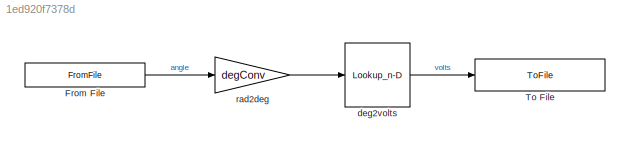
MODEL slx_1ed920f7378d
KIND model
CONFIG AbsTol = auto
CONFIG EnableMultiTasking = on
CONFIG FixedStep = auto
CONFIG MaxStep = auto
CONFIG MinStep = auto
CONFIG PreLoadFcn = degConv = 180/pi;
CONFIG RelTol = 1e-3
CONFIG SampleTimeConstraint = Unconstrained
CONFIG Solver = VariableStepAuto
CONFIG SolverName = VariableStepAuto
CONFIG StartTime = 0.0
CONFIG StopTime = 10.0
BLOCK [FromFile] From File
  FileName = inputMatFile.mat
  SampleTime = 0
BLOCK [ToFile] To File
  Filename = outputMatFile.mat
  MatrixName = outputData
  Ports = [1]
BLOCK [Lookup_n-D] deg2volts
  BreakpointsForDimension1 = [0 90]
  ExtrapMethod = Clip
  NumberOfTableDimensions = 1
  Ports = [1, 1]
  RndMeth = Simplest
  Table = [0.5 4.5]
BLOCK [Gain] rad2deg
  Gain = degConv
LINE From File:1 -> rad2deg:1
LINE deg2volts:1 -> To File:1
LINE rad2deg:1 -> deg2volts:1
